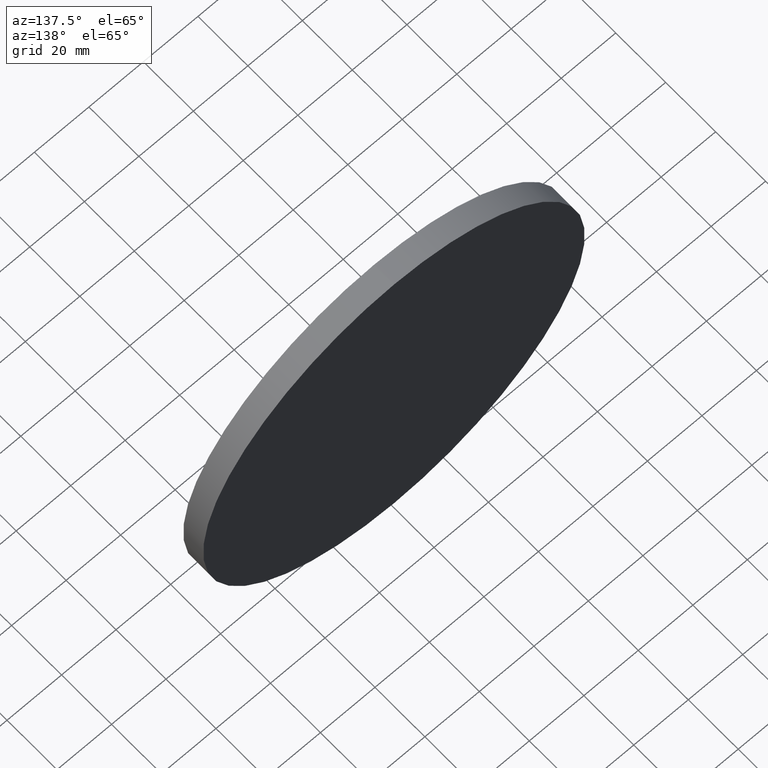
[diagram: clean part render]
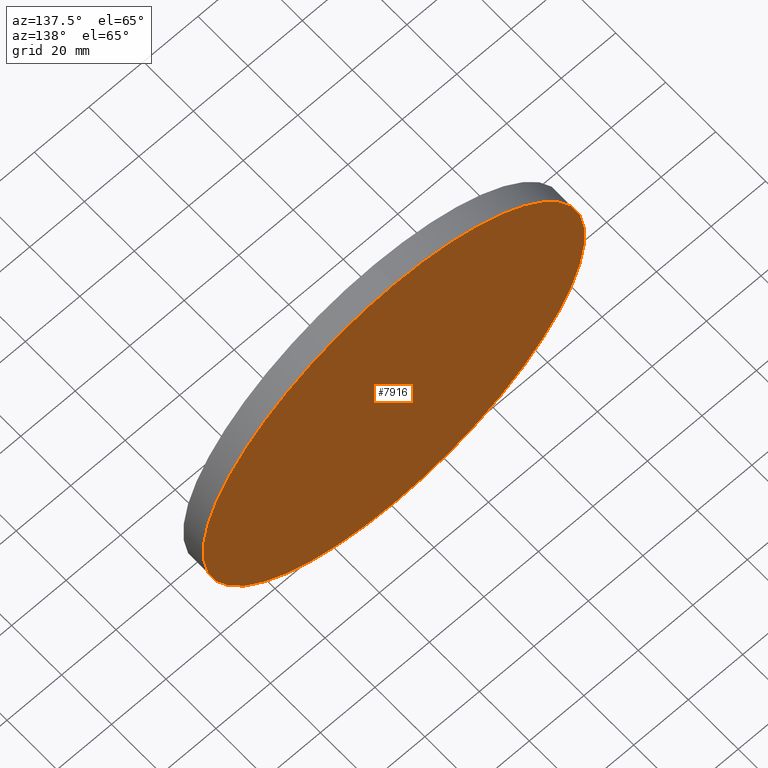
[diagram: same view with one face highlighted and labeled with its STEP entity id]
A machine part, auxiliary view. The second image highlights one B-rep face of the part: STEP entity #7916.
In plain terms, the highlighted planar face has unit normal (0, 1, 0).
Its self-contained STEP definition (entity closure, byte-faithful):
#269 = DIRECTION ( 'NONE',  ( 0.000000000000000000, 1.000000000000000000, 0.000000000000000000 ) ) ;
#1267 = DIRECTION ( 'NONE',  ( 0.000000000000000000, 1.000000000000000000, 0.000000000000000000 ) ) ;
#2555 = AXIS2_PLACEMENT_3D ( 'NONE', #5318, #12871, #9705 ) ;
#3475 = ORIENTED_EDGE ( 'NONE', *, *, #12251, .T. ) ;
#5165 = VERTEX_POINT ( 'NONE', #10919 ) ;
#5318 = CARTESIAN_POINT ( 'NONE',  ( 0.000000000000000000, 4.000000000000000000, 0.000000000000000000 ) ) ;
#5671 = CIRCLE ( 'NONE', #2555, 70.00000000000001421 ) ;
#6162 = CIRCLE ( 'NONE', #11165, 70.00000000000001421 ) ;
#6584 = DIRECTION ( 'NONE',  ( 0.000000000000000000, -0.000000000000000000, 1.000000000000000000 ) ) ;
#6622 = PLANE ( 'NONE',  #13769 ) ;
#6828 = VERTEX_POINT ( 'NONE', #13499 ) ;
#7916 = ADVANCED_FACE ( 'NONE', ( #9393 ), #6622, .T. ) ;
#8932 = DIRECTION ( 'NONE',  ( 0.000000000000000000, 0.000000000000000000, 1.000000000000000000 ) ) ;
#9393 = FACE_OUTER_BOUND ( 'NONE', #12960, .T. ) ;
#9705 = DIRECTION ( 'NONE',  ( 0.000000000000000000, 0.000000000000000000, 1.000000000000000000 ) ) ;
#9795 = EDGE_CURVE ( 'NONE', #5165, #6828, #5671, .T. ) ;
#10046 = ORIENTED_EDGE ( 'NONE', *, *, #9795, .T. ) ;
#10919 = CARTESIAN_POINT ( 'NONE',  ( 0.000000000000000000, 4.000000000000000000, -70.00000000000001421 ) ) ;
#11165 = AXIS2_PLACEMENT_3D ( 'NONE', #12236, #269, #8932 ) ;
#12236 = CARTESIAN_POINT ( 'NONE',  ( 0.000000000000000000, 4.000000000000000000, 0.000000000000000000 ) ) ;
#12251 = EDGE_CURVE ( 'NONE', #6828, #5165, #6162, .T. ) ;
#12871 = DIRECTION ( 'NONE',  ( 0.000000000000000000, 1.000000000000000000, 0.000000000000000000 ) ) ;
#12960 = EDGE_LOOP ( 'NONE', ( #10046, #3475 ) ) ;
#13221 = CARTESIAN_POINT ( 'NONE',  ( 0.000000000000000000, 4.000000000000000000, 0.000000000000000000 ) ) ;
#13499 = CARTESIAN_POINT ( 'NONE',  ( 8.572527594031474570E-15, 4.000000000000000000, 70.00000000000001421 ) ) ;
#13769 = AXIS2_PLACEMENT_3D ( 'NONE', #13221, #1267, #6584 ) ;